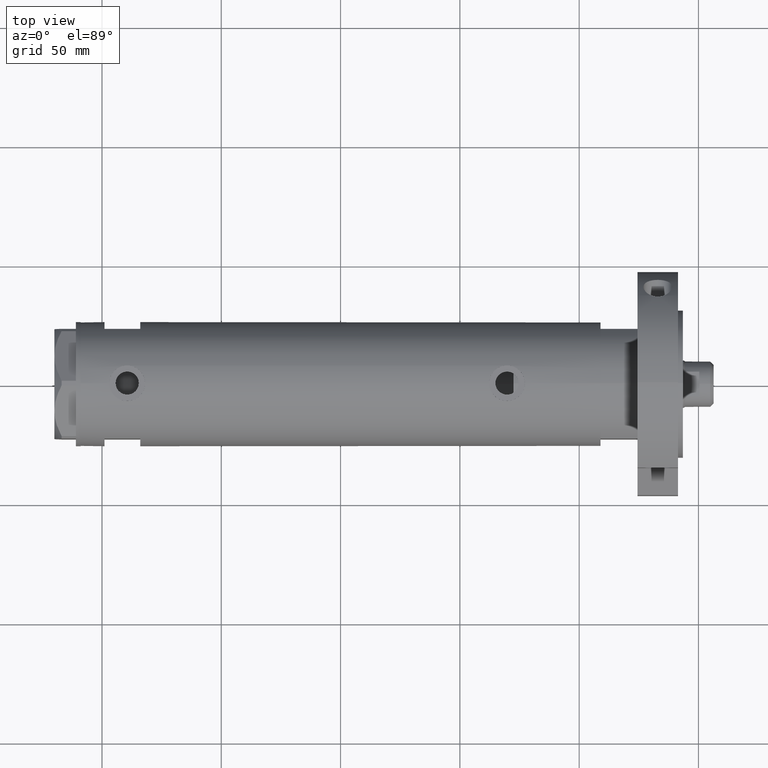
[diagram: clean part render]
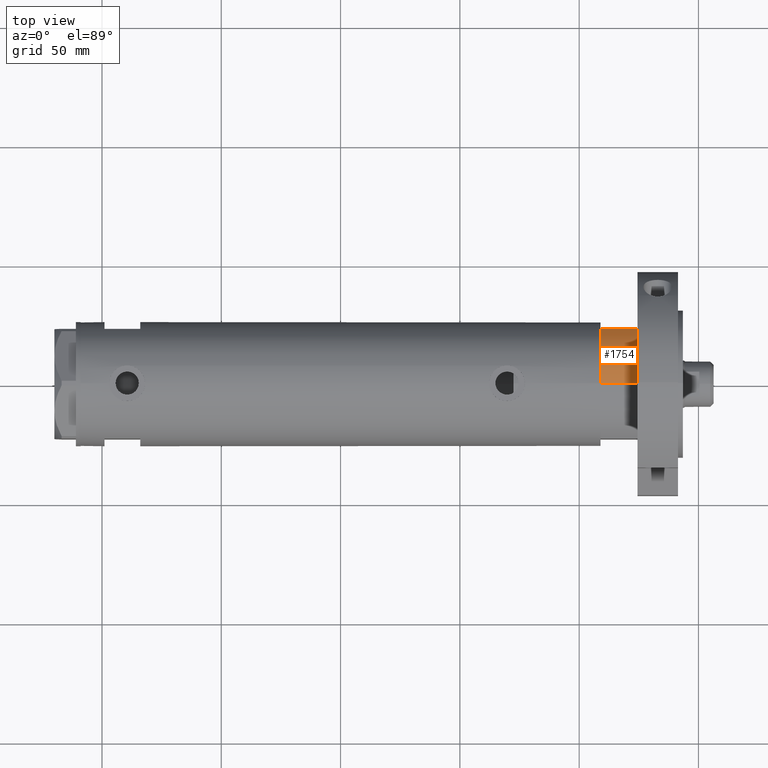
[diagram: same view with one face highlighted and labeled with its STEP entity id]
A machine part, top view. The second image highlights one B-rep face of the part: STEP entity #1754.
In plain terms, the highlighted cylindrical surface (partial cylindrical patch) has radius 26 mm, axis along (-1, -0, 0).
Its self-contained STEP definition (entity closure, byte-faithful):
#49 = CARTESIAN_POINT ( 'NONE',  ( -12.12435565298215145, 23.00000000000000355, 0.000000000000000000 ) ) ;
#108 = VERTEX_POINT ( 'NONE', #5541 ) ;
#388 = DIRECTION ( 'NONE',  ( 1.000000000000000000, 0.000000000000000000, 0.000000000000000000 ) ) ;
#861 = CARTESIAN_POINT ( 'NONE',  ( 0.000000000000000000, 0.000000000000000000, 0.000000000000000000 ) ) ;
#920 = ORIENTED_EDGE ( 'NONE', *, *, #6271, .F. ) ;
#948 = DIRECTION ( 'NONE',  ( 1.000000000000000000, 0.000000000000000000, 0.000000000000000000 ) ) ;
#1123 = VERTEX_POINT ( 'NONE', #3710 ) ;
#1200 = FACE_OUTER_BOUND ( 'NONE', #5918, .T. ) ;
#1353 = EDGE_CURVE ( 'NONE', #5851, #1123, #6169, .T. ) ;
#1637 = DIRECTION ( 'NONE',  ( -1.000000000000000000, 0.000000000000000000, 0.000000000000000000 ) ) ;
#1754 = ADVANCED_FACE ( 'NONE', ( #1200 ), #3176, .T. ) ;
#1872 = ORIENTED_EDGE ( 'NONE', *, *, #6286, .T. ) ;
#2292 = LINE ( 'NONE', #6372, #6219 ) ;
#2319 = CARTESIAN_POINT ( 'NONE',  ( 0.000000000000000000, 0.000000000000000000, 15.50000000000000000 ) ) ;
#2388 = ORIENTED_EDGE ( 'NONE', *, *, #2798, .F. ) ;
#2732 = DIRECTION ( 'NONE',  ( -0.000000000000000000, -0.000000000000000000, -1.000000000000000000 ) ) ;
#2798 = EDGE_CURVE ( 'NONE', #108, #5851, #4502, .T. ) ;
#3114 = AXIS2_PLACEMENT_3D ( 'NONE', #4186, #6211, #1637 ) ;
#3176 = CYLINDRICAL_SURFACE ( 'NONE', #3114, 26.00000000000000355 ) ;
#3335 = DIRECTION ( 'NONE',  ( 0.000000000000000000, 0.000000000000000000, 1.000000000000000000 ) ) ;
#3710 = CARTESIAN_POINT ( 'NONE',  ( -26.00000000000000355, 0.000000000000000000, 15.50000000000000000 ) ) ;
#4186 = CARTESIAN_POINT ( 'NONE',  ( 0.000000000000000000, 0.000000000000000000, 15.50000000000000000 ) ) ;
#4486 = AXIS2_PLACEMENT_3D ( 'NONE', #2319, #5428, #948 ) ;
#4502 = LINE ( 'NONE', #49, #4701 ) ;
#4536 = CARTESIAN_POINT ( 'NONE',  ( -26.00000000000000355, 0.000000000000000000, 0.000000000000000000 ) ) ;
#4701 = VECTOR ( 'NONE', #5623, 1000.000000000000000 ) ;
#4947 = AXIS2_PLACEMENT_3D ( 'NONE', #861, #3335, #388 ) ;
#4952 = ORIENTED_EDGE ( 'NONE', *, *, #1353, .F. ) ;
#5275 = VERTEX_POINT ( 'NONE', #4536 ) ;
#5428 = DIRECTION ( 'NONE',  ( 0.000000000000000000, 0.000000000000000000, 1.000000000000000000 ) ) ;
#5541 = CARTESIAN_POINT ( 'NONE',  ( -12.12435565298215145, 23.00000000000000355, 0.000000000000000000 ) ) ;
#5623 = DIRECTION ( 'NONE',  ( -0.000000000000000000, -0.000000000000000000, 1.000000000000000000 ) ) ;
#5851 = VERTEX_POINT ( 'NONE', #6278 ) ;
#5918 = EDGE_LOOP ( 'NONE', ( #920, #4952, #2388, #1872 ) ) ;
#6169 = CIRCLE ( 'NONE', #4486, 26.00000000000000355 ) ;
#6211 = DIRECTION ( 'NONE',  ( -0.000000000000000000, -0.000000000000000000, -1.000000000000000000 ) ) ;
#6219 = VECTOR ( 'NONE', #2732, 1000.000000000000000 ) ;
#6271 = EDGE_CURVE ( 'NONE', #1123, #5275, #2292, .T. ) ;
#6278 = CARTESIAN_POINT ( 'NONE',  ( -12.12435565298214613, 23.00000000000000355, 15.50000000000000000 ) ) ;
#6286 = EDGE_CURVE ( 'NONE', #108, #5275, #6435, .T. ) ;
#6372 = CARTESIAN_POINT ( 'NONE',  ( -26.00000000000000355, 0.000000000000000000, 15.50000000000000000 ) ) ;
#6435 = CIRCLE ( 'NONE', #4947, 26.00000000000000355 ) ;